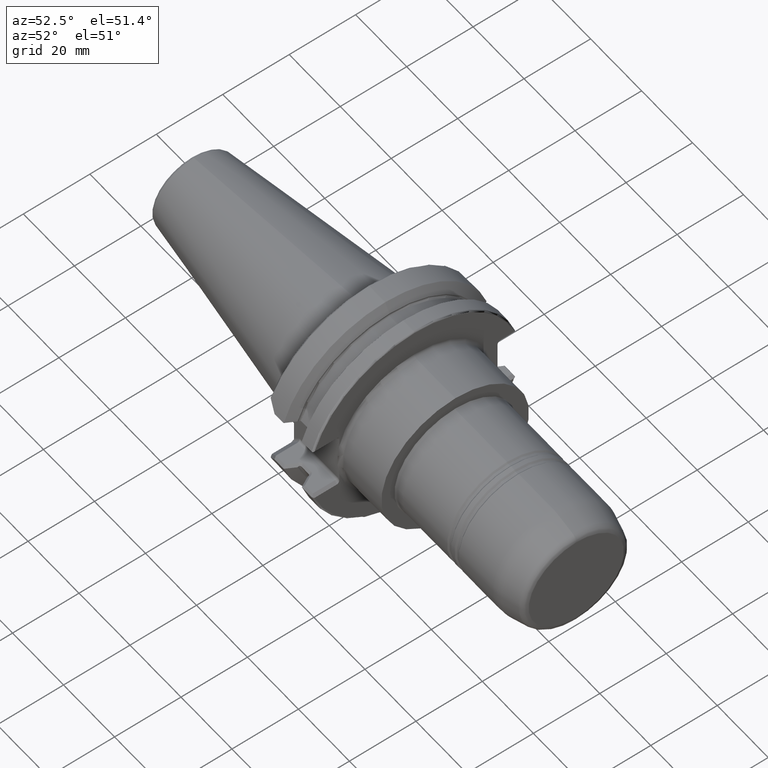
[diagram: clean part render]
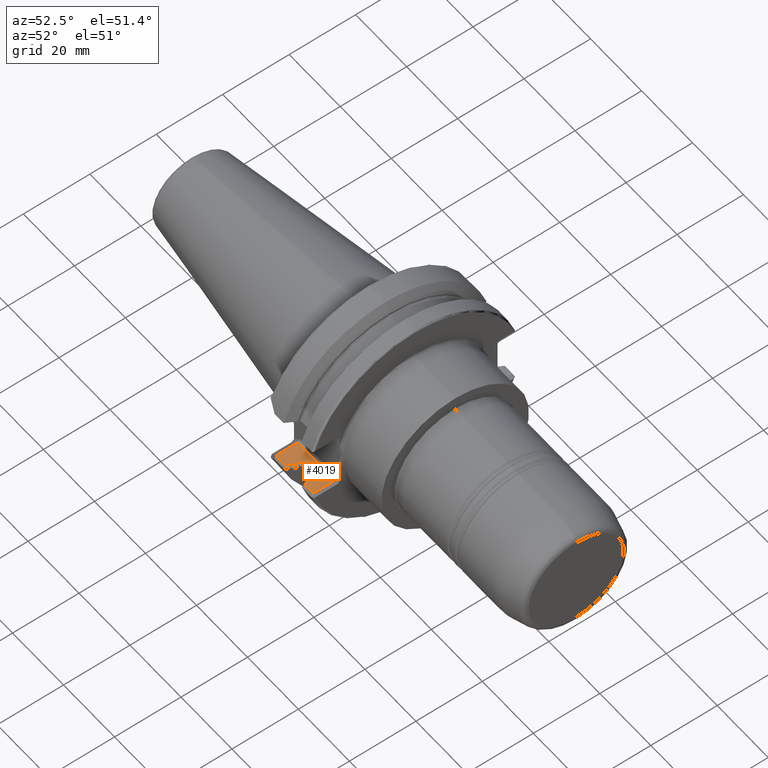
[diagram: same view with one face highlighted and labeled with its STEP entity id]
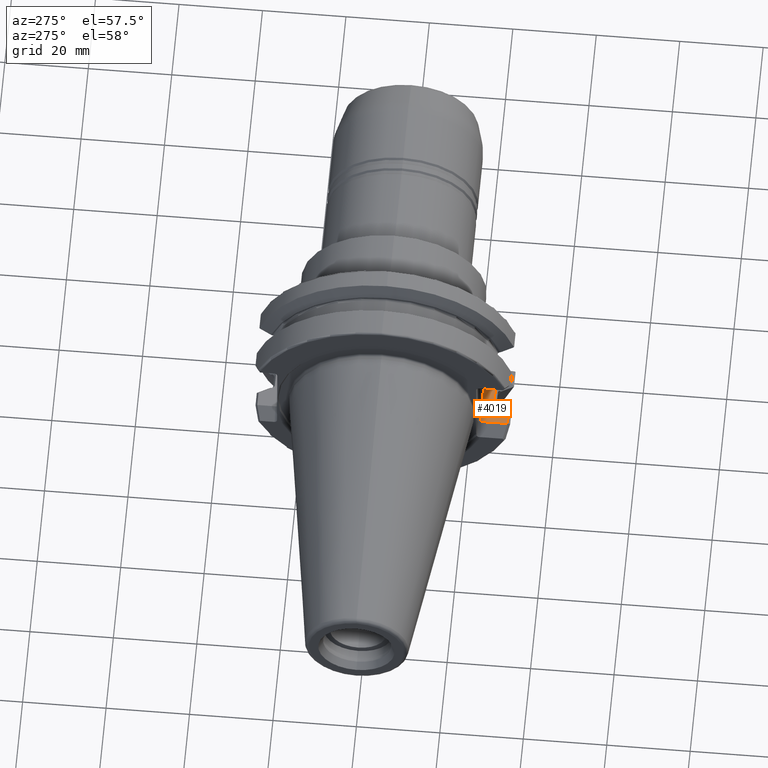
[diagram: same view with one face highlighted and labeled with its STEP entity id]
A machine part, auxiliary view. The second image highlights one B-rep face of the part: STEP entity #4019.
A second angle (auxiliary view) of the same face is appended — the face is thin or edge-on in the first view.
In plain terms, the highlighted planar face has unit normal (-0, 0, -1).
Its self-contained STEP definition (entity closure, byte-faithful):
#3 = CARTESIAN_POINT ( 'NONE',  ( 81.36572241188349600, -26.31082147719129000, -8.050000000000000700 ) ) ;
#17 = DIRECTION ( 'NONE',  ( 1.000000000000000000, 3.649772477534968100E-017, -1.130113013665671200E-016 ) ) ;
#24 = CARTESIAN_POINT ( 'NONE',  ( 71.95000000000000300, -23.36200000000000200, -8.050000000000000700 ) ) ;
#36 = EDGE_CURVE ( 'NONE', #4834, #774, #3477, .T. ) ;
#71 = CARTESIAN_POINT ( 'NONE',  ( 81.94722616545357100, -27.37555154799943200, -8.050000000000000700 ) ) ;
#100 = LINE ( 'NONE', #1188, #4139 ) ;
#177 = B_SPLINE_CURVE_WITH_KNOTS ( 'NONE', 3,
 ( #2335, #4287, #3, #2753, #383, #3152, #792, #3527 ),
 .UNSPECIFIED., .F., .F.,
 ( 4, 2, 2, 4 ),
 ( 0.0000000000000000000, 0.4782769720092760500, 0.7174154580139140400, 0.9565539440185520900 ),
 .UNSPECIFIED. ) ;
#220 = VECTOR ( 'NONE', #3210, 1000.000000000000000 ) ;
#296 = ORIENTED_EDGE ( 'NONE', *, *, #730, .T. ) ;
#318 = CARTESIAN_POINT ( 'NONE',  ( 76.86847204708762100, -26.96628511084803400, -8.050000000000004300 ) ) ;
#383 = CARTESIAN_POINT ( 'NONE',  ( 81.78885672452736300, -26.77405612804229000, -8.050000000000000700 ) ) ;
#389 = CARTESIAN_POINT ( 'NONE',  ( 81.94580510827300700, -27.32182496438902700, -8.050000000000000700 ) ) ;
#431 = CARTESIAN_POINT ( 'NONE',  ( 86.50000000000001400, -23.36200000000000200, -8.050000000000000700 ) ) ;
#562 = CARTESIAN_POINT ( 'NONE',  ( 76.81273842104261000, -27.37561734769272800, -8.050000000000000700 ) ) ;
#613 = CARTESIAN_POINT ( 'NONE',  ( 76.81409289221232900, -27.32200726171128800, -8.050000000000000700 ) ) ;
#698 = CARTESIAN_POINT ( 'NONE',  ( 77.06465433226796300, -26.65282386631491800, -8.049999999999998900 ) ) ;
#730 = EDGE_CURVE ( 'NONE', #774, #4008, #3118, .T. ) ;
#763 = EDGE_LOOP ( 'NONE', ( #4135, #2512, #4704, #2316, #1595, #3800, #1682, #1684, #1850, #2866, #894, #296 ) ) ;
#774 = VERTEX_POINT ( 'NONE', #3243 ) ;
#792 = CARTESIAN_POINT ( 'NONE',  ( 81.94020346140426600, -27.17466788314504500, -8.050000000000000700 ) ) ;
#805 = DIRECTION ( 'NONE',  ( 0.0000000000000000000, 1.000000000000000000, 0.0000000000000000000 ) ) ;
#894 = ORIENTED_EDGE ( 'NONE', *, *, #36, .T. ) ;
#934 = B_SPLINE_CURVE_WITH_KNOTS ( 'NONE', 3,
 ( #3775, #1040, #1431, #4162 ),
 .UNSPECIFIED., .F., .F.,
 ( 4, 4 ),
 ( 0.0000000000000000000, 1.000000000000000000 ),
 .UNSPECIFIED. ) ;
#936 = CARTESIAN_POINT ( 'NONE',  ( 71.95000000000000300, -23.36200000000000200, -8.050000000000000700 ) ) ;
#1040 = CARTESIAN_POINT ( 'NONE',  ( 75.84834495225732100, -29.06977798259909600, -8.050000000000000700 ) ) ;
#1081 = CARTESIAN_POINT ( 'NONE',  ( 71.95000000000000300, -31.75000000000000000, -8.050000000000000700 ) ) ;
#1103 = CARTESIAN_POINT ( 'NONE',  ( 77.39543229150184800, -26.31011730117723600, -8.050000000000000700 ) ) ;
#1156 = CARTESIAN_POINT ( 'NONE',  ( 82.44594656704757100, -28.22701822280800600, -8.050000000000000700 ) ) ;
#1188 = CARTESIAN_POINT ( 'NONE',  ( 71.95000000000000300, -26.20573827911396200, -8.050000000000000700 ) ) ;
#1195 = CARTESIAN_POINT ( 'NONE',  ( 77.95500000000001300, -26.20573827911396200, -8.050000000000000700 ) ) ;
#1219 = VERTEX_POINT ( 'NONE', #3990 ) ;
#1225 = LINE ( 'NONE', #3158, #4214 ) ;
#1231 = LINE ( 'NONE', #1081, #4092 ) ;
#1305 = DIRECTION ( 'NONE',  ( 1.000000000000000000, 3.211283852629142200E-017, -1.130113013665671200E-016 ) ) ;
#1329 = CARTESIAN_POINT ( 'NONE',  ( 76.81409289221232900, -27.32200726171128800, -8.050000000000000700 ) ) ;
#1359 = CARTESIAN_POINT ( 'NONE',  ( 76.81409289221232900, -27.32200726171128800, -8.050000000000000700 ) ) ;
#1431 = CARTESIAN_POINT ( 'NONE',  ( 76.31405343212762200, -28.22701822230400700, -8.050000000000000700 ) ) ;
#1486 = CARTESIAN_POINT ( 'NONE',  ( 71.95000000000000300, -31.75000000000000000, -8.050000000000000700 ) ) ;
#1491 = CARTESIAN_POINT ( 'NONE',  ( 77.95500000000001300, -26.20573827911396200, -8.050000000000000700 ) ) ;
#1516 = CARTESIAN_POINT ( 'NONE',  ( 83.38406441830827000, -29.91253815626447500, -8.050000000000000700 ) ) ;
#1595 = ORIENTED_EDGE ( 'NONE', *, *, #4386, .T. ) ;
#1682 = ORIENTED_EDGE ( 'NONE', *, *, #4722, .T. ) ;
#1684 = ORIENTED_EDGE ( 'NONE', *, *, #4617, .T. ) ;
#1708 = CARTESIAN_POINT ( 'NONE',  ( 76.79662527820718800, -27.39354121968983000, -8.050000000000000700 ) ) ;
#1850 = ORIENTED_EDGE ( 'NONE', *, *, #4791, .T. ) ;
#1856 = CARTESIAN_POINT ( 'NONE',  ( 86.50000000000000000, -29.91253815626447800, -8.050000000000004300 ) ) ;
#1901 = LINE ( 'NONE', #936, #5012 ) ;
#1940 = VERTEX_POINT ( 'NONE', #1195 ) ;
#2007 = B_SPLINE_CURVE_WITH_KNOTS ( 'NONE', 3,
 ( #613, #2662, #318, #3072, #698, #3448, #1103, #3838, #1491 ),
 .UNSPECIFIED., .F., .F.,
 ( 4, 1, 2, 2, 4 ),
 ( 0.04336840939328057100, 0.2825263070449584000, 0.4021052558707925400, 0.5216842046966266900, 1.000000000000000000 ),
 .UNSPECIFIED. ) ;
#2016 = CARTESIAN_POINT ( 'NONE',  ( 80.80500000000004900, -26.20573827911396200, -8.050000000000000700 ) ) ;
#2037 = CARTESIAN_POINT ( 'NONE',  ( 81.94705674053004400, -27.34854865432673400, -8.050000000000000700 ) ) ;
#2060 = VERTEX_POINT ( 'NONE', #1329 ) ;
#2100 = CARTESIAN_POINT ( 'NONE',  ( 71.95000000000000300, -29.91253815626447500, -8.050000000000000700 ) ) ;
#2316 = ORIENTED_EDGE ( 'NONE', *, *, #4228, .T. ) ;
#2335 = CARTESIAN_POINT ( 'NONE',  ( 80.80500000000004900, -26.20573827911396200, -8.050000000000000700 ) ) ;
#2379 = VECTOR ( 'NONE', #1305, 1000.000000000000000 ) ;
#2410 = CARTESIAN_POINT ( 'NONE',  ( 71.95000000000000300, -29.91253815626447500, -8.050000000000000700 ) ) ;
#2512 = ORIENTED_EDGE ( 'NONE', *, *, #3809, .T. ) ;
#2524 = DIRECTION ( 'NONE',  ( -1.000000000000000000, 0.0000000000000000000, 1.130113013665671200E-016 ) ) ;
#2662 = CARTESIAN_POINT ( 'NONE',  ( 76.81954425132053600, -27.17488409483712500, -8.050000000000000700 ) ) ;
#2672 = DIRECTION ( 'NONE',  ( -1.000000000000000000, 0.0000000000000000000, 1.130113013665671200E-016 ) ) ;
#2739 = CARTESIAN_POINT ( 'NONE',  ( 82.91165504697359300, -29.06977798304889800, -8.050000000000000700 ) ) ;
#2750 = VERTEX_POINT ( 'NONE', #389 ) ;
#2753 = CARTESIAN_POINT ( 'NONE',  ( 81.70150992272164100, -26.64981245687829100, -8.050000000000000700 ) ) ;
#2809 = VERTEX_POINT ( 'NONE', #431 ) ;
#2823 = VERTEX_POINT ( 'NONE', #2016 ) ;
#2832 = CARTESIAN_POINT ( 'NONE',  ( 81.96337472135255100, -27.39354121996893100, -8.050000000000000700 ) ) ;
#2866 = ORIENTED_EDGE ( 'NONE', *, *, #4689, .T. ) ;
#2928 = B_SPLINE_CURVE_WITH_KNOTS ( 'NONE', 3,
 ( #4762, #2037, #71, #2832 ),
 .UNSPECIFIED., .F., .F.,
 ( 4, 4 ),
 ( 0.9565539440185520900, 1.000000000000000000 ),
 .UNSPECIFIED. ) ;
#3072 = CARTESIAN_POINT ( 'NONE',  ( 76.97808946815567300, -26.77579398327295100, -8.049999999999998900 ) ) ;
#3087 = EDGE_CURVE ( 'NONE', #1219, #3668, #1231, .T. ) ;
#3118 = LINE ( 'NONE', #2410, #220 ) ;
#3152 = CARTESIAN_POINT ( 'NONE',  ( 81.90761426626536900, -27.03568656684145600, -8.050000000000002500 ) ) ;
#3158 = CARTESIAN_POINT ( 'NONE',  ( 86.50000000000001400, -31.75000000000000000, -8.050000000000000700 ) ) ;
#3210 = DIRECTION ( 'NONE',  ( 1.000000000000000000, 3.211283852629141600E-017, -1.130113013665671200E-016 ) ) ;
#3243 = CARTESIAN_POINT ( 'NONE',  ( 83.38406441830827000, -29.91253815626447500, -8.050000000000000700 ) ) ;
#3325 = CARTESIAN_POINT ( 'NONE',  ( 76.79662527820718800, -27.39354121968983000, -8.050000000000000700 ) ) ;
#3448 = CARTESIAN_POINT ( 'NONE',  ( 77.11546996033013100, -26.59237532267594500, -8.050000000000000700 ) ) ;
#3477 = B_SPLINE_CURVE_WITH_KNOTS ( 'NONE', 3,
 ( #5074, #1156, #2739, #1516 ),
 .UNSPECIFIED., .F., .F.,
 ( 4, 4 ),
 ( 0.0000000000000000000, 1.000000000000000000 ),
 .UNSPECIFIED. ) ;
#3527 = CARTESIAN_POINT ( 'NONE',  ( 81.94580510827300700, -27.32182496438902700, -8.050000000000000700 ) ) ;
#3544 = LINE ( 'NONE', #2100, #2379 ) ;
#3637 = EDGE_CURVE ( 'NONE', #4008, #2809, #1225, .T. ) ;
#3668 = VERTEX_POINT ( 'NONE', #24 ) ;
#3669 = B_SPLINE_CURVE_WITH_KNOTS ( 'NONE', 3,
 ( #3325, #562, #3702, #1359 ),
 .UNSPECIFIED., .F., .F.,
 ( 4, 4 ),
 ( 0.0000000000000000000, 0.04336840939328057100 ),
 .UNSPECIFIED. ) ;
#3702 = CARTESIAN_POINT ( 'NONE',  ( 76.81287516877364400, -27.34867536201820900, -8.050000000000000700 ) ) ;
#3775 = CARTESIAN_POINT ( 'NONE',  ( 75.38263624502984300, -29.91253815626447500, -8.050000000000000700 ) ) ;
#3800 = ORIENTED_EDGE ( 'NONE', *, *, #4289, .T. ) ;
#3809 = EDGE_CURVE ( 'NONE', #2809, #3668, #1901, .T. ) ;
#3821 = DIRECTION ( 'NONE',  ( -0.0000000000000000000, 1.000000000000000000, -0.0000000000000000000 ) ) ;
#3838 = CARTESIAN_POINT ( 'NONE',  ( 77.65661148264702300, -26.20005548808982000, -8.050000000000002500 ) ) ;
#3990 = CARTESIAN_POINT ( 'NONE',  ( 71.94889134080931100, -29.91428883186313200, -8.050553921649299800 ) ) ;
#4008 = VERTEX_POINT ( 'NONE', #1856 ) ;
#4019 = ADVANCED_FACE ( 'NONE', ( #4030 ), #4980, .F. ) ;
#4030 = FACE_OUTER_BOUND ( 'NONE', #763, .T. ) ;
#4092 = VECTOR ( 'NONE', #3821, 1000.000000000000000 ) ;
#4135 = ORIENTED_EDGE ( 'NONE', *, *, #3637, .T. ) ;
#4139 = VECTOR ( 'NONE', #17, 1000.000000000000000 ) ;
#4162 = CARTESIAN_POINT ( 'NONE',  ( 76.79662527820718800, -27.39354121968983000, -8.050000000000000700 ) ) ;
#4212 = VERTEX_POINT ( 'NONE', #1708 ) ;
#4214 = VECTOR ( 'NONE', #805, 1000.000000000000000 ) ;
#4228 = EDGE_CURVE ( 'NONE', #1219, #4979, #3544, .T. ) ;
#4287 = CARTESIAN_POINT ( 'NONE',  ( 81.10419549440277400, -26.20046241567942900, -8.050000000000000700 ) ) ;
#4289 = EDGE_CURVE ( 'NONE', #4212, #2060, #3669, .T. ) ;
#4322 = CARTESIAN_POINT ( 'NONE',  ( 81.96337472135255100, -27.39354121996893100, -8.050000000000000700 ) ) ;
#4386 = EDGE_CURVE ( 'NONE', #4979, #4212, #934, .T. ) ;
#4573 = AXIS2_PLACEMENT_3D ( 'NONE', #1486, #5003, #2672 ) ;
#4617 = EDGE_CURVE ( 'NONE', #1940, #2823, #100, .T. ) ;
#4689 = EDGE_CURVE ( 'NONE', #2750, #4834, #2928, .T. ) ;
#4704 = ORIENTED_EDGE ( 'NONE', *, *, #3087, .F. ) ;
#4722 = EDGE_CURVE ( 'NONE', #2060, #1940, #2007, .T. ) ;
#4762 = CARTESIAN_POINT ( 'NONE',  ( 81.94580510827300700, -27.32182496438902700, -8.050000000000000700 ) ) ;
#4791 = EDGE_CURVE ( 'NONE', #2823, #2750, #177, .T. ) ;
#4802 = CARTESIAN_POINT ( 'NONE',  ( 75.38263624502984300, -29.91253815626447500, -8.050000000000000700 ) ) ;
#4834 = VERTEX_POINT ( 'NONE', #4322 ) ;
#4979 = VERTEX_POINT ( 'NONE', #4802 ) ;
#4980 = PLANE ( 'NONE',  #4573 ) ;
#5003 = DIRECTION ( 'NONE',  ( -1.130113013665671200E-016, 0.0000000000000000000, -1.000000000000000000 ) ) ;
#5012 = VECTOR ( 'NONE', #2524, 1000.000000000000000 ) ;
#5074 = CARTESIAN_POINT ( 'NONE',  ( 81.96337472135255100, -27.39354121996893100, -8.050000000000000700 ) ) ;